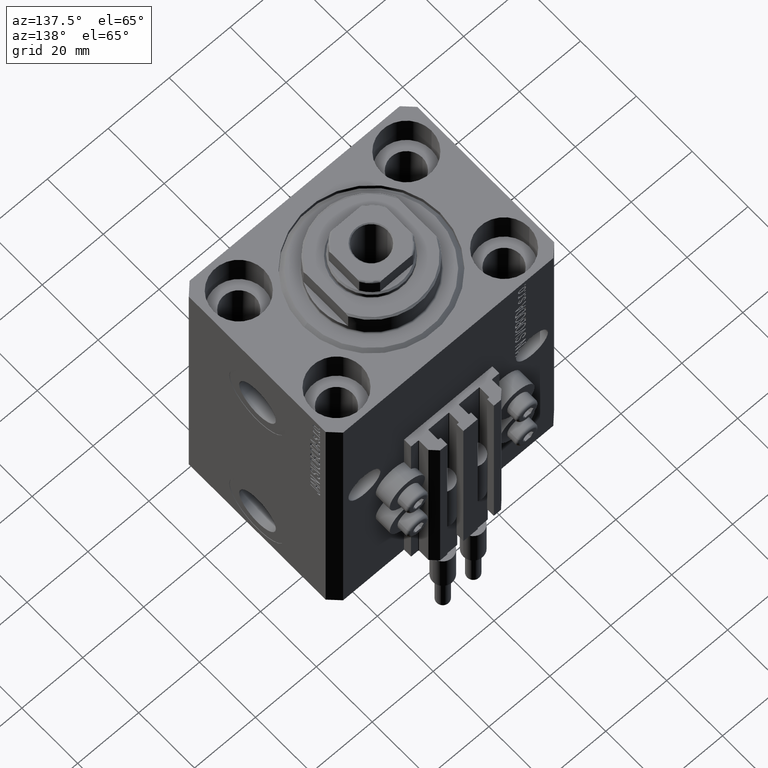
[diagram: clean part render]
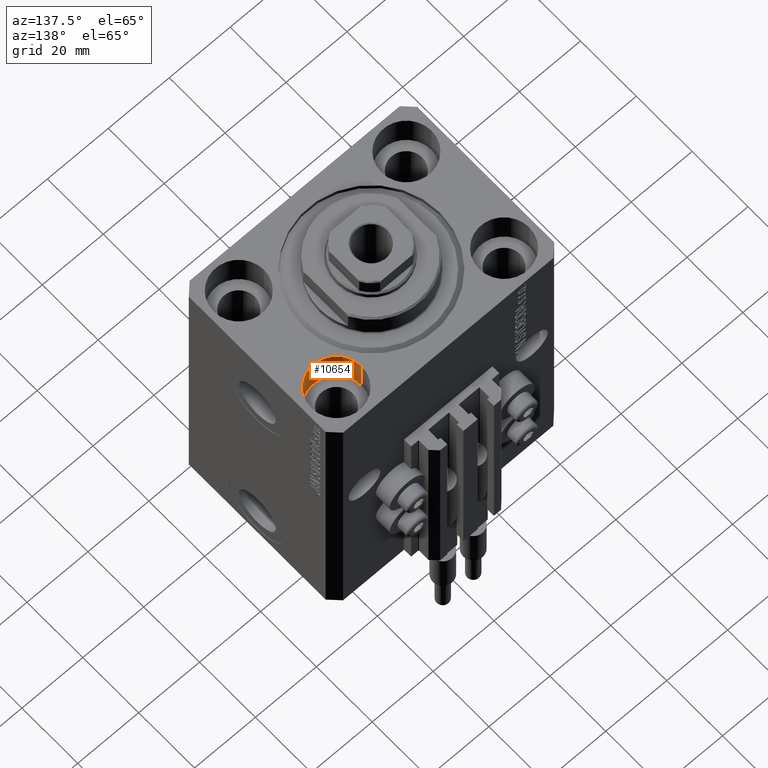
[diagram: same view with one face highlighted and labeled with its STEP entity id]
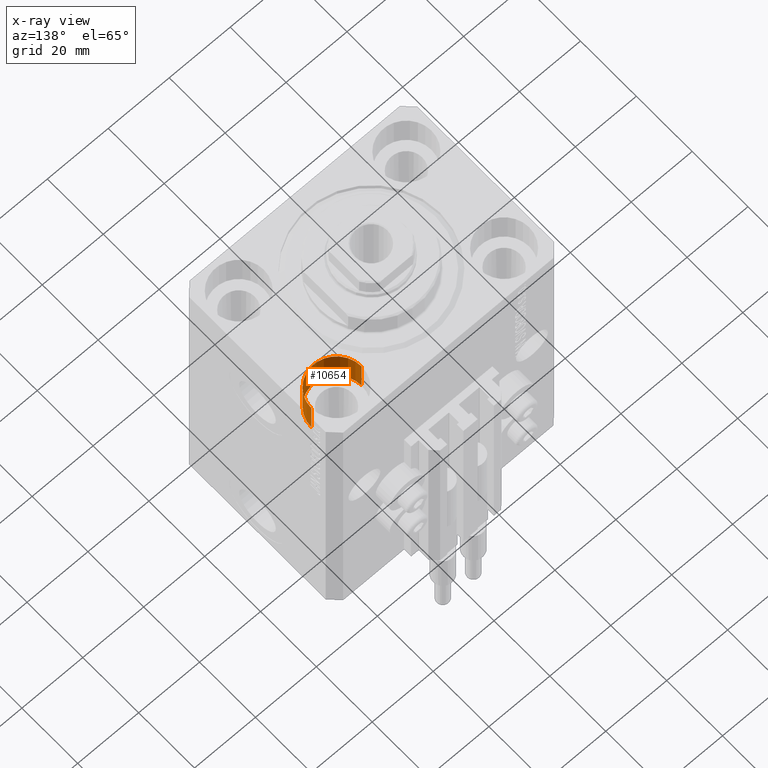
[diagram: x-ray of the same camera — body ghosted, the highlighted face saturated]
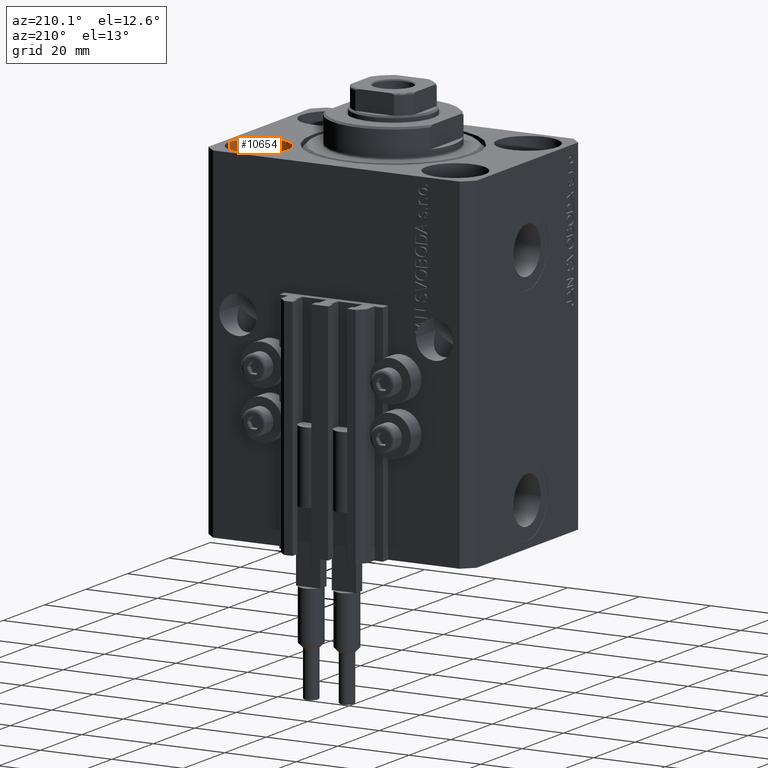
[diagram: same view with one face highlighted and labeled with its STEP entity id]
A machine part, auxiliary view. The second image highlights one B-rep face of the part: STEP entity #10654.
The next image is the same camera in x-ray: the body ghosted, the highlighted face saturated — about 0% of this face is hidden behind the body in this view.
A second angle (auxiliary view) of the same face is appended — the face is thin or edge-on in the first view.
In plain terms, the highlighted cylindrical surface (edge-blend (fillet) strip) has radius 8.25 mm, axis along (0, 0, 1).
Its self-contained STEP definition (entity closure, byte-faithful):
#4083 = ORIENTED_EDGE ( 'NONE', *, *, #34279, .T. ) ;
#4259 = DIRECTION ( 'NONE',  ( -0.000000000000000000, -0.000000000000000000, 1.000000000000000000 ) ) ;
#4754 = DIRECTION ( 'NONE',  ( 1.000000000000000000, 0.000000000000000000, 0.000000000000000000 ) ) ;
#5294 = CIRCLE ( 'NONE', #25590, 8.249999999999992895 ) ;
#6397 = CARTESIAN_POINT ( 'NONE',  ( 35.74999999999999289, 17.50000000000001066, -11.00000000000000000 ) ) ;
#7437 = CARTESIAN_POINT ( 'NONE',  ( 35.74999999999999289, 17.50000000000001066, 0.000000000000000000 ) ) ;
#7616 = DIRECTION ( 'NONE',  ( 0.000000000000000000, 0.000000000000000000, 1.000000000000000000 ) ) ;
#7641 = EDGE_CURVE ( 'NONE', #38093, #38116, #5294, .T. ) ;
#7923 = LINE ( 'NONE', #37886, #48063 ) ;
#10063 = CARTESIAN_POINT ( 'NONE',  ( 19.25000000000000000, 17.50000000000001066, -11.00000000000000000 ) ) ;
#10654 = ADVANCED_FACE ( 'NONE', ( #23268 ), #30581, .F. ) ;
#11298 = VERTEX_POINT ( 'NONE', #7437 ) ;
#12425 = ORIENTED_EDGE ( 'NONE', *, *, #36545, .F. ) ;
#13728 = DIRECTION ( 'NONE',  ( -0.000000000000000000, -0.000000000000000000, 1.000000000000000000 ) ) ;
#18819 = DIRECTION ( 'NONE',  ( 1.000000000000000000, 0.000000000000000000, 0.000000000000000000 ) ) ;
#22895 = AXIS2_PLACEMENT_3D ( 'NONE', #38369, #27406, #4754 ) ;
#23268 = FACE_OUTER_BOUND ( 'NONE', #43858, .T. ) ;
#25590 = AXIS2_PLACEMENT_3D ( 'NONE', #37582, #7616, #18819 ) ;
#27406 = DIRECTION ( 'NONE',  ( -0.000000000000000000, -0.000000000000000000, 1.000000000000000000 ) ) ;
#28050 = ORIENTED_EDGE ( 'NONE', *, *, #39939, .T. ) ;
#29275 = CARTESIAN_POINT ( 'NONE',  ( 19.25000000000000000, 17.50000000000001066, -11.00000000000000000 ) ) ;
#30581 = CYLINDRICAL_SURFACE ( 'NONE', #22895, 8.249999999999992895 ) ;
#31604 = CIRCLE ( 'NONE', #37833, 8.249999999999992895 ) ;
#34235 = CARTESIAN_POINT ( 'NONE',  ( 27.49999999999999645, 17.50000000000001066, 0.000000000000000000 ) ) ;
#34279 = EDGE_CURVE ( 'NONE', #42900, #11298, #31604, .T. ) ;
#36545 = EDGE_CURVE ( 'NONE', #38116, #11298, #7923, .T. ) ;
#37184 = DIRECTION ( 'NONE',  ( 0.000000000000000000, 0.000000000000000000, 1.000000000000000000 ) ) ;
#37426 = DIRECTION ( 'NONE',  ( 1.000000000000000000, 0.000000000000000000, 0.000000000000000000 ) ) ;
#37582 = CARTESIAN_POINT ( 'NONE',  ( 27.49999999999999645, 17.50000000000001066, -11.00000000000000000 ) ) ;
#37833 = AXIS2_PLACEMENT_3D ( 'NONE', #34235, #37184, #37426 ) ;
#37886 = CARTESIAN_POINT ( 'NONE',  ( 35.74999999999999289, 17.50000000000001066, -11.00000000000000000 ) ) ;
#38093 = VERTEX_POINT ( 'NONE', #29275 ) ;
#38116 = VERTEX_POINT ( 'NONE', #6397 ) ;
#38369 = CARTESIAN_POINT ( 'NONE',  ( 27.49999999999999645, 17.50000000000001066, -11.00000000000000000 ) ) ;
#39554 = LINE ( 'NONE', #10063, #42691 ) ;
#39939 = EDGE_CURVE ( 'NONE', #38093, #42900, #39554, .T. ) ;
#41074 = CARTESIAN_POINT ( 'NONE',  ( 19.25000000000000000, 17.50000000000001066, 0.000000000000000000 ) ) ;
#42691 = VECTOR ( 'NONE', #13728, 1000.000000000000000 ) ;
#42900 = VERTEX_POINT ( 'NONE', #41074 ) ;
#43858 = EDGE_LOOP ( 'NONE', ( #46901, #28050, #4083, #12425 ) ) ;
#46901 = ORIENTED_EDGE ( 'NONE', *, *, #7641, .F. ) ;
#48063 = VECTOR ( 'NONE', #4259, 1000.000000000000000 ) ;